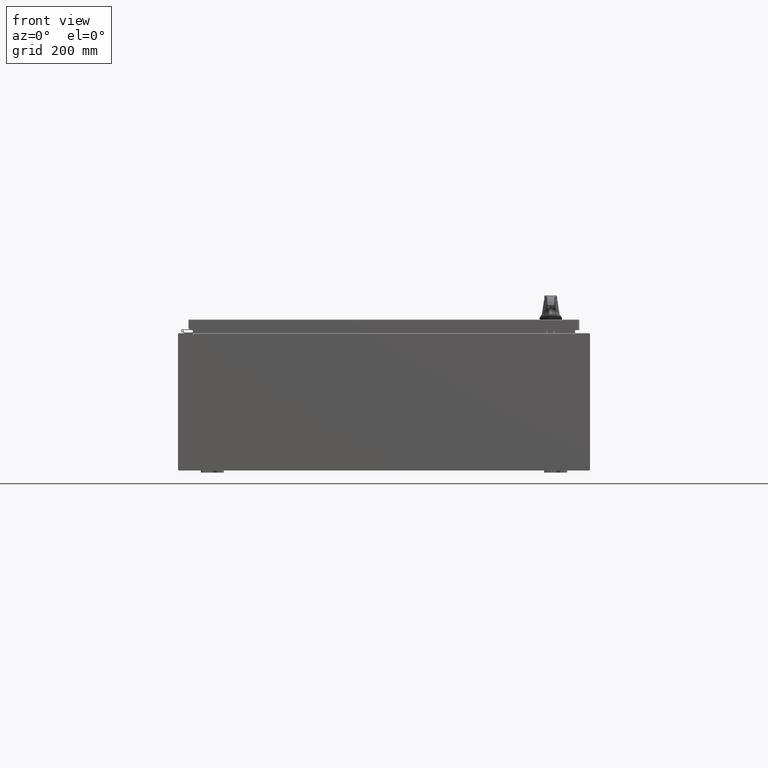
[diagram: clean part render]
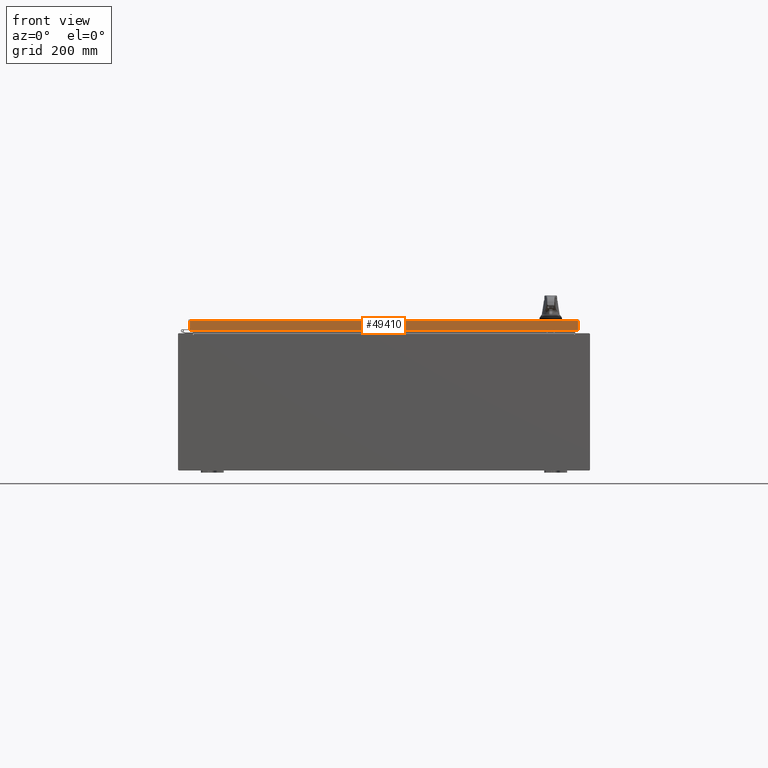
[diagram: same view with one face highlighted and labeled with its STEP entity id]
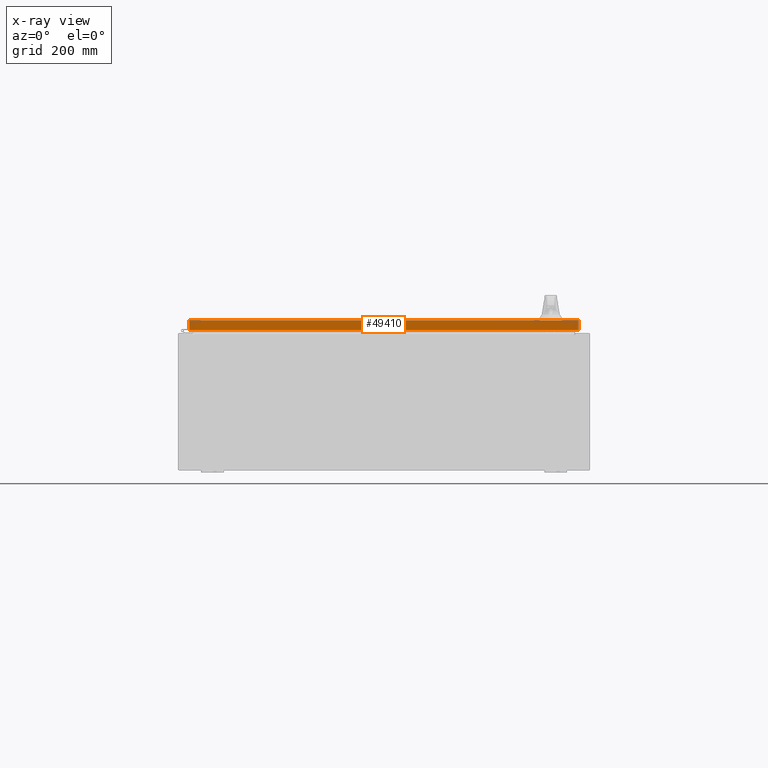
[diagram: x-ray of the same camera — body ghosted, the highlighted face saturated]
A machine part, front view. The second image highlights one B-rep face of the part: STEP entity #49410.
The next image is the same camera in x-ray: the body ghosted, the highlighted face saturated — about 0% of this face is hidden behind the body in this view.
In plain terms, the highlighted planar face has unit normal (-0, 1, -0).
Its self-contained STEP definition (entity closure, byte-faithful):
#1430 = LINE ( 'NONE', #89208, #53332 ) ;
#3448 = VERTEX_POINT ( 'NONE', #102660 ) ;
#3733 = DIRECTION ( 'NONE',  ( -0.0000000000000000000, -5.064839849203732200E-015, -1.000000000000000000 ) ) ;
#7568 = CARTESIAN_POINT ( 'NONE',  ( 17.07799999999999900, -23.09400000000000500, -0.9376999999999997600 ) ) ;
#11408 = ORIENTED_EDGE ( 'NONE', *, *, #16122, .F. ) ;
#16122 = EDGE_CURVE ( 'NONE', #99738, #3448, #97008, .T. ) ;
#18006 = DIRECTION ( 'NONE',  ( -1.000000000000000000, 8.758115402030108600E-047, 1.279703943630056800E-016 ) ) ;
#18785 = DIRECTION ( 'NONE',  ( -6.481495528880676900E-031, 1.000000000000000000, -5.064839849203732200E-015 ) ) ;
#28639 = FACE_OUTER_BOUND ( 'NONE', #127013, .T. ) ;
#29929 = LINE ( 'NONE', #38836, #57466 ) ;
#30072 = ORIENTED_EDGE ( 'NONE', *, *, #35821, .T. ) ;
#30811 = VERTEX_POINT ( 'NONE', #102876 ) ;
#35821 = EDGE_CURVE ( 'NONE', #66806, #30811, #1430, .T. ) ;
#37423 = ORIENTED_EDGE ( 'NONE', *, *, #80645, .F. ) ;
#38836 = CARTESIAN_POINT ( 'NONE',  ( 17.07799999999999900, -23.09400000000000100, -0.08769999999999550400 ) ) ;
#40684 = ORIENTED_EDGE ( 'NONE', *, *, #112300, .F. ) ;
#49410 = ADVANCED_FACE ( 'NONE', ( #28639 ), #80887, .F. ) ;
#53332 = VECTOR ( 'NONE', #110086, 39.37007874015748100 ) ;
#55393 = CARTESIAN_POINT ( 'NONE',  ( 16.98915786437626700, -23.09400000000000100, -0.07469999999999962800 ) ) ;
#57466 = VECTOR ( 'NONE', #100963, 39.37007874015748100 ) ;
#66806 = VERTEX_POINT ( 'NONE', #103311 ) ;
#80645 = EDGE_CURVE ( 'NONE', #66806, #99738, #29929, .T. ) ;
#80887 = PLANE ( 'NONE',  #117510 ) ;
#89005 = CARTESIAN_POINT ( 'NONE',  ( 16.98915786437626700, -23.09400000000000100, -0.08769999999999550400 ) ) ;
#89208 = CARTESIAN_POINT ( 'NONE',  ( -16.98915786437627100, -23.09400000000000100, 1.172282251335225800E-013 ) ) ;
#91290 = DIRECTION ( 'NONE',  ( 0.0000000000000000000, 5.064839849203732200E-015, 1.000000000000000000 ) ) ;
#97008 = LINE ( 'NONE', #55393, #121304 ) ;
#99738 = VERTEX_POINT ( 'NONE', #89005 ) ;
#100963 = DIRECTION ( 'NONE',  ( 1.000000000000000000, 6.481495528880677800E-031, -3.349804276043092000E-045 ) ) ;
#101755 = VECTOR ( 'NONE', #18006, 39.37007874015748100 ) ;
#102660 = CARTESIAN_POINT ( 'NONE',  ( 16.98915786437626700, -23.09400000000000500, -0.9376999999999997600 ) ) ;
#102876 = CARTESIAN_POINT ( 'NONE',  ( -16.98915786437626700, -23.09400000000000500, -0.9376999999999954300 ) ) ;
#103311 = CARTESIAN_POINT ( 'NONE',  ( -16.98915786437626700, -23.09400000000000100, -0.08769999999999550400 ) ) ;
#108261 = LINE ( 'NONE', #7568, #101755 ) ;
#110086 = DIRECTION ( 'NONE',  ( 0.0000000000000000000, -5.064839849203732200E-015, -1.000000000000000000 ) ) ;
#112300 = EDGE_CURVE ( 'NONE', #3448, #30811, #108261, .T. ) ;
#117510 = AXIS2_PLACEMENT_3D ( 'NONE', #131622, #18785, #91290 ) ;
#121304 = VECTOR ( 'NONE', #3733, 39.37007874015748100 ) ;
#127013 = EDGE_LOOP ( 'NONE', ( #37423, #30072, #40684, #11408 ) ) ;
#131622 = CARTESIAN_POINT ( 'NONE',  ( 1.496836577439703600E-029, -23.09400000000000100, 1.172282251335225800E-013 ) ) ;